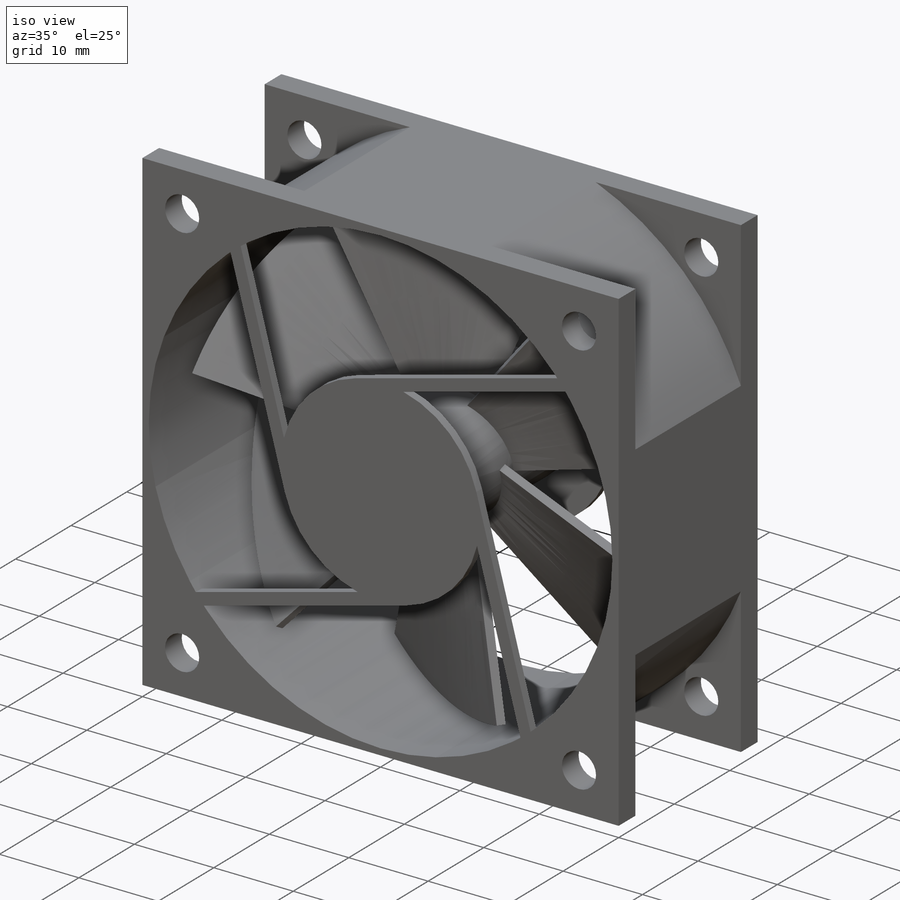
[diagram: iso view]
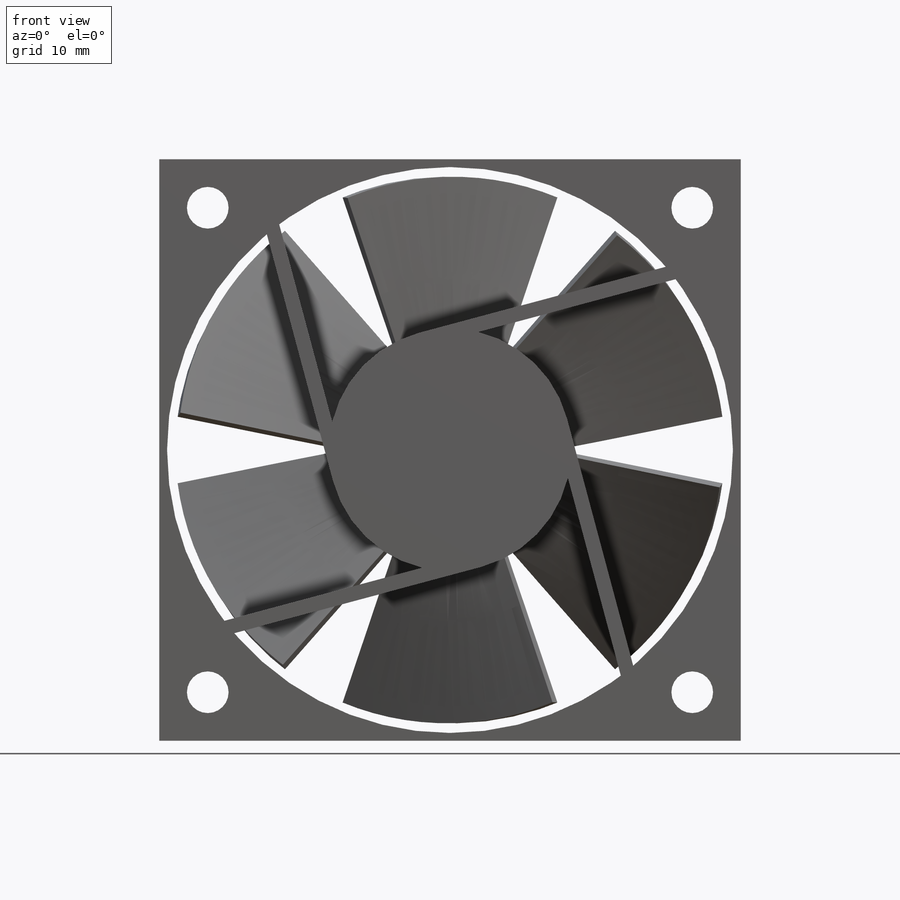
[diagram: front view]
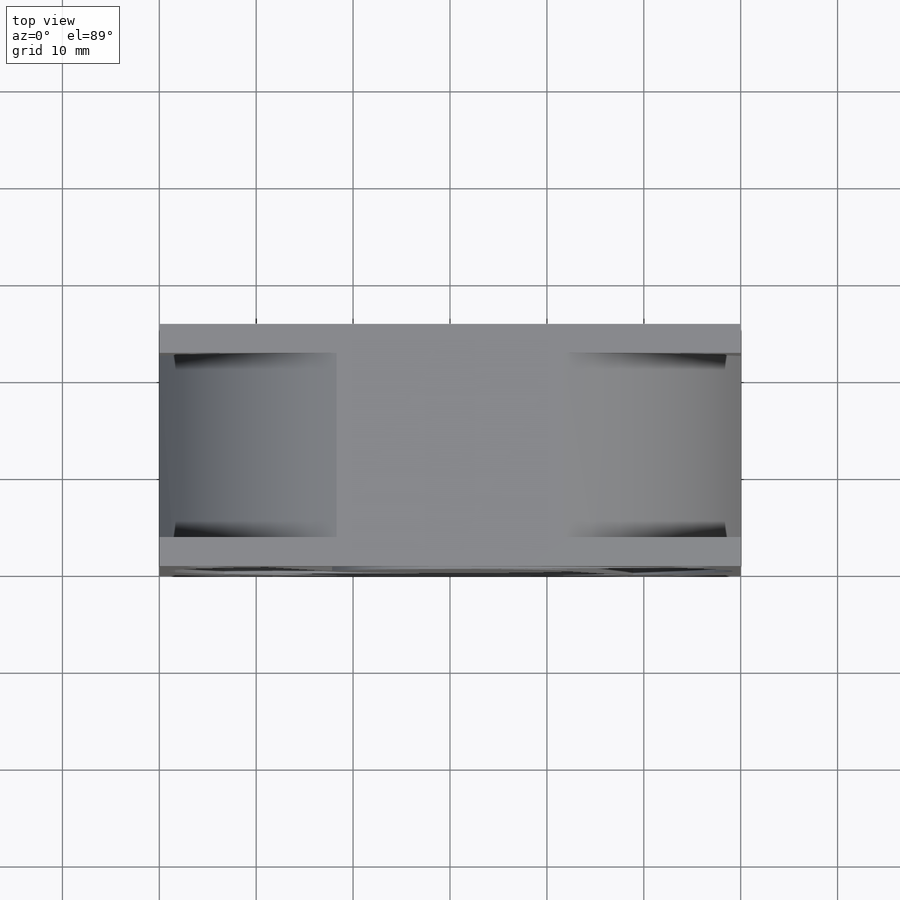
[diagram: top view]
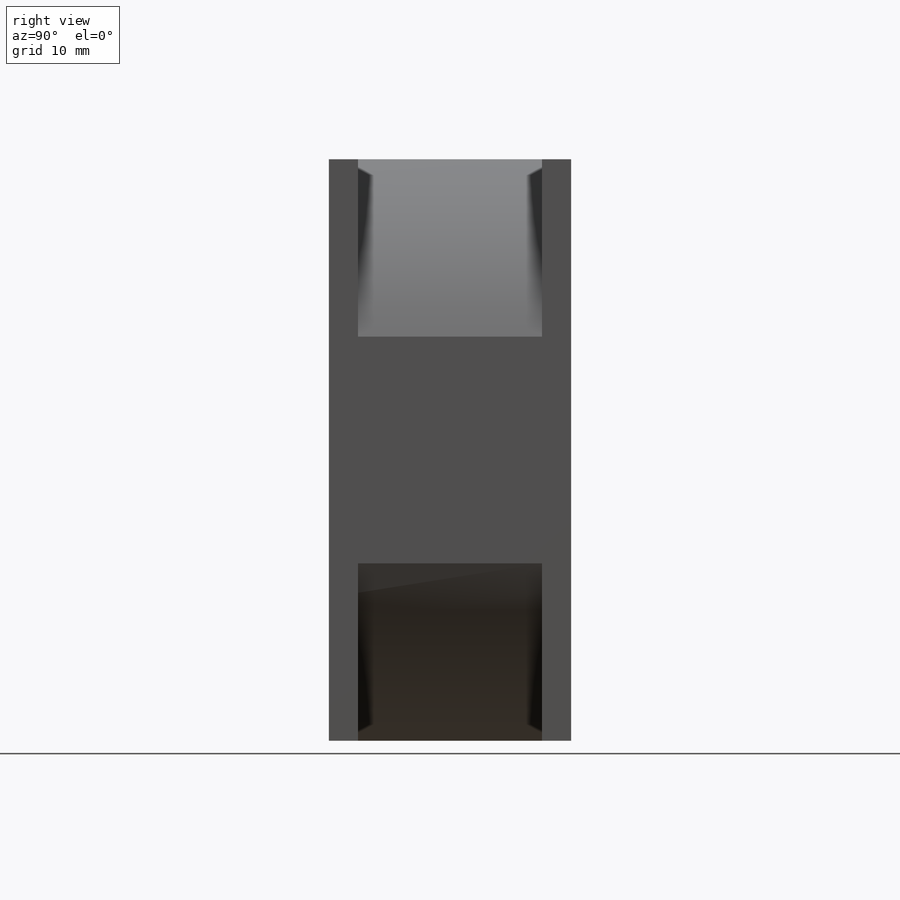
[diagram: right view]
SOLIDWORKS PART (.sldprt)
format: sldprt  version: not decoded by parser v0  size: 609,280 bytes
history: native  units: mm
features: sketch x10, extrude x4, plane x3, pattern_linear x2, material x1, cut_extrude x1, hole x1, surface_op x1, pattern_circular x1, boolean_combine x1 (+9 scaffold rows collapsed)
feature tree (34):
  scaffold x9  (default folders/planes/origin — collapsed)
  material  "POM copolymère d'acétal"
  plane  "Plan de face"
  plane  "Plan de dessus"
  plane  "Plan de droite"
  sketch  "Esquisse1"  dims[D1=60.0mm D2=60.0mm]
  extrude  "Boss.-Extru.1"  Depth=3mm
  pattern_linear  "Répétition linéaire1"  Count1=2 Count2=1 Spacing1=22mm Spacing2=10mm
  sketch  "Esquisse2"  dims[D1=0.8mm]
  cut_extrude  "Enlèv. mat.-Extru.1"  [1 undecoded]
  hole  "Diamètre du perçage Ø4.3 (4.3)1"  Diameter=4.3mm Depth=25mm
  sketch  "Esquisse4"  dims[D1=50.0mm D2=50.0mm]
  sketch  "Esquisse5"  dims[hole-wizard template sketch: 59 standard entries collapsed; hole parameters kept: c18.Diamètre du perçage jusqu'au prochain=4.3mm c18.Profondeur du perçage jusqu'au prochain=25.0mm]
  sketch  "Esquisse6"  dims[D2=3.0mm D1=0.0mm]
  extrude  "Boss.-Extru.2"  [1 undecoded]
  sketch  "Esquisse7"  dims[c1.D1=25.0mm c1.D2=~25.520244mm c2.D2=15.0deg c2.D3=1.5mm c2.D4=1.5mm c2.D5=1.5mm c2.D6=1.5mm]
  extrude  "Boss.-Extru.3"  Depth=1mm
  pattern_linear  "Répétition linéaire2"  Count1=2 Count2=1 Spacing1=24mm Spacing2=10mm
  sketch  "Esquisse8"  dims[D1=15.0mm]
  extrude  "Boss.-Extru.4"  Depth=1mm
  sketch  "Esquisse9"  dims[c1.D1=8.0mm c1.D2=30.0mm c2.D2=15.0deg c2.D3=25.0mm c2.D4=30.0mm c3.D4=30.0deg]
  surface_op  "Surface-Extrusion1"
  sketch  "Esquisse3D1"
  sketch  "Esquisse3D2"  dims[D1=0.5mm]
  pattern_circular  "Répétition circulaire1"  Count=6 Angle=360deg
  boolean_combine  "Combiner1"
decode coverage: 16 of 21 modeling features carry decoded parameters
note: ~ marks probable driven/reference dimensions
note: 2 parameter values undecoded
note: suppression state not decoded; provenance and decode notes live in map.json
